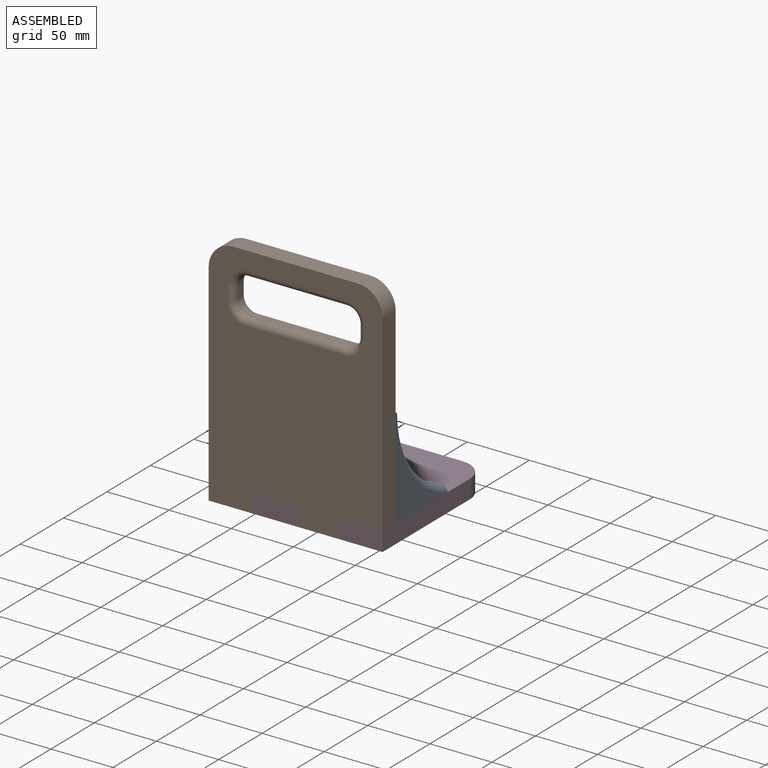
[diagram: assembled view]
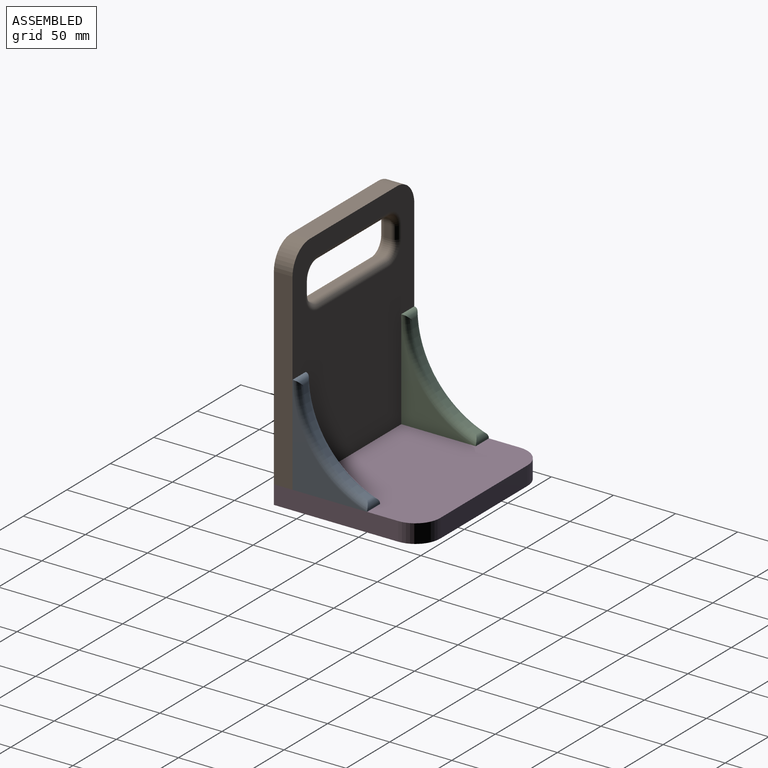
[diagram: assembled view, second angle]
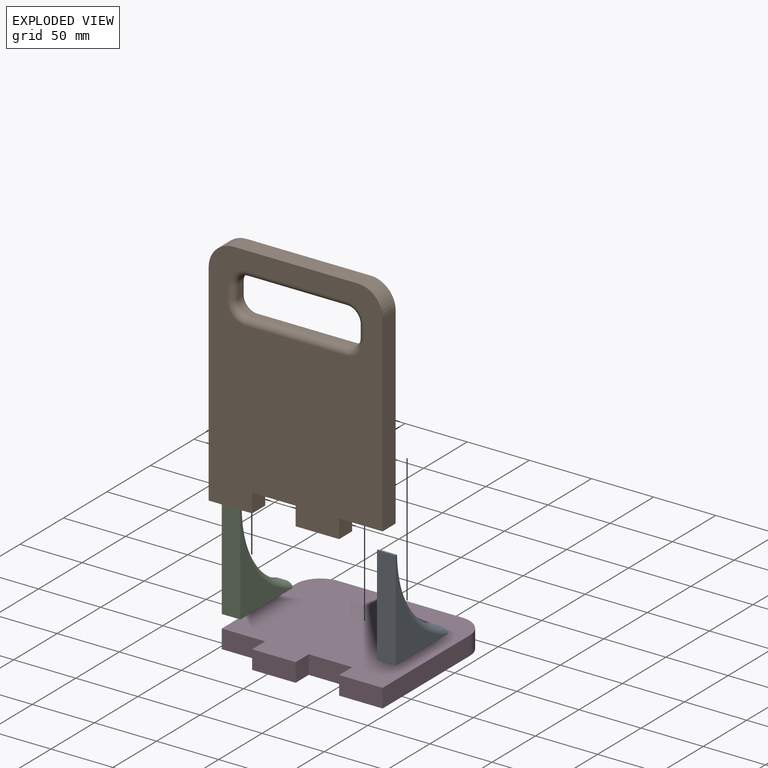
[diagram: exploded view]
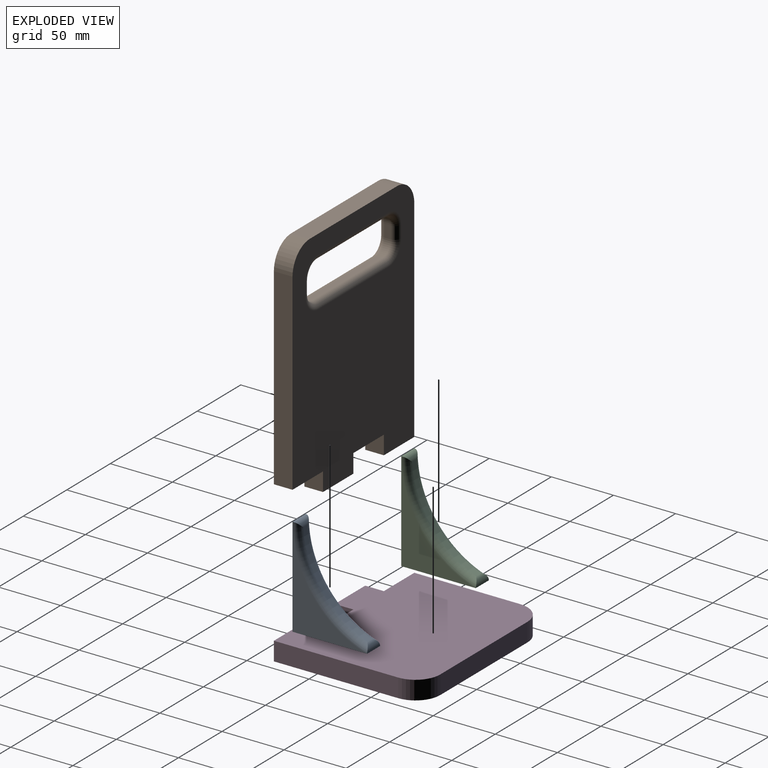
[diagram: exploded view, second angle]
ASSEMBLY  parts=4 mates=3
PART A: 11 faces, bbox 15x72.1x90.5 mm
  f0: plane 80x15mm, normal (0,-1,0), area 1200mm2, adj f1,f4,f5,f6
  f1: plane 60x15mm, normal (0,0,-1), area 900mm2, adj f0,f2,f5,f6,f8,f9
  f2: plane 14.99x1.42mm, normal (0,1,0), area 21mm2, adj f1,f8,f9,f10
  f3: cylinder r=78.64mm len=69.18mm, axis (-1,0,0), area 456.7mm2, adj f7,f8,f9,f10
  f4: plane 15x0.15mm, normal (0,0,1), area 2.2mm2, adj f0,f7,f8,f9
  f5: plane 80x59.24mm, normal (1,0,0), area 1256.4mm2, adj f0,f1,f8
  f6: plane 80x59.24mm, normal (-1,0,0), area 1256.4mm2, adj f0,f1,f9
  f7: cylinder r=5mm len=15mm, axis (-1,0,0), area 85.5mm2, adj f3,f4,f8,f9
  f8: torus R=83.64mm, axis (1,0,0), area 783.2mm2, adj f1,f2,f3,f4,f5,f7,f10
  f9: torus R=83.64mm, axis (1,0,0), area 783.2mm2, adj f1,f2,f3,f4,f6,f7,f10
  f10: cylinder r=5mm len=14.49mm, axis (-1,0,0), area 64.1mm2, adj f2,f3,f8,f9
PART B: 38 faces, bbox 140x15x190 mm
  f0: cylinder r=10mm len=10mm, axis (0,1,0), area 78.5mm2, adj f1,f19,f28,f36
  f1: plane 10x5mm, normal (-1,0,0), area 50mm2, adj f0,f2,f26,f34
  f2: cylinder r=10mm len=10mm, axis (0,1,0), area 78.5mm2, adj f1,f3,f24,f32
  f3: plane 80x5mm, normal (0,0,1), area 400mm2, adj f2,f4,f22,f30
  f4: cylinder r=10mm len=10mm, axis (0,1,0), area 78.5mm2, adj f3,f5,f23,f31
  f5: plane 10x5mm, normal (1,0,0), area 50mm2, adj f4,f6,f25,f33
  f6: cylinder r=10mm len=10mm, axis (0,1,0), area 78.5mm2, adj f5,f19,f27,f35
  f7: plane 35x15mm, normal (0,0,-1), area 525mm2, adj f8,f18,f20,f21
  f8: plane 15x15mm, normal (1,0,0), area 225mm2, adj f7,f9,f20,f21
  f9: plane 35x15mm, normal (0,0,-1), area 525mm2, adj f8,f10,f20,f21
  f10: plane 15x15mm, normal (-1,0,0), area 225mm2, adj f9,f11,f20,f21
  f11: plane 35x15mm, normal (0,0,-1), area 525mm2, adj f10,f12,f20,f21
  f12: plane 15x15mm, normal (1,0,0), area 225mm2, adj f11,f13,f20,f21
  f13: plane 35x15mm, normal (0,0,-1), area 525mm2, adj f12,f14,f20,f21
  f14: plane 155x15mm, normal (1,0,0), area 2325mm2, adj f13,f15,f20,f21
  f15: cylinder r=20mm len=20mm, axis (0,1,0), area 471.2mm2, adj f14,f16,f20,f21
  f16: plane 100x15mm, normal (0,0,1), area 1500mm2, adj f15,f17,f20,f21
  f17: cylinder r=20mm len=20mm, axis (0,1,0), area 471.2mm2, adj f16,f18,f20,f21
  f18: plane 170x15mm, normal (-1,0,0), area 2550mm2, adj f7,f17,f20,f21
  f19: plane 80x5mm, normal (0,0,-1), area 400mm2, adj f0,f6,f29,f37
  f20: plane 190x140mm, normal (0,-1,0), area 21171.5mm2, adj f7,f8,f9,f10,f11,f12,f13,f14
  f21: plane 190x140mm, normal (0,1,0), area 21171.5mm2, adj f7,f8,f9,f10,f11,f12,f13,f14
  f22: cylinder r=5mm len=80mm, axis (-1,0,0), area 628.3mm2, adj f3,f21,f23,f24
  f23: torus R=15mm, axis (0,-1,0), area 145.8mm2, adj f4,f21,f22,f25
  f24: torus R=15mm, axis (0,-1,0), area 145.8mm2, adj f2,f21,f22,f26
  f25: cylinder r=5mm len=10mm, axis (0,0,1), area 78.5mm2, adj f5,f21,f23,f27
  f26: cylinder r=5mm len=10mm, axis (0,0,-1), area 78.5mm2, adj f1,f21,f24,f28
  f27: torus R=15mm, axis (0,-1,0), area 145.8mm2, adj f6,f21,f25,f29
  f28: torus R=15mm, axis (0,-1,0), area 145.8mm2, adj f0,f21,f26,f29
  f29: cylinder r=5mm len=80mm, axis (1,0,0), area 628.3mm2, adj f19,f21,f27,f28
  f30: cylinder r=5mm len=80mm, axis (1,0,0), area 628.3mm2, adj f3,f20,f31,f32
  f31: torus R=15mm, axis (0,-1,0), area 145.8mm2, adj f4,f20,f30,f33
  f32: torus R=15mm, axis (0,-1,0), area 145.8mm2, adj f2,f20,f30,f34
  f33: cylinder r=5mm len=10mm, axis (0,0,-1), area 78.5mm2, adj f5,f20,f31,f35
  f34: cylinder r=5mm len=10mm, axis (0,0,1), area 78.5mm2, adj f1,f20,f32,f36
  f35: torus R=15mm, axis (0,-1,0), area 145.8mm2, adj f6,f20,f33,f37
  f36: torus R=15mm, axis (0,-1,0), area 145.8mm2, adj f0,f20,f34,f37
  f37: cylinder r=5mm len=80mm, axis (-1,0,0), area 628.3mm2, adj f19,f20,f35,f36
PART C: same geometry as A
PART D: 14 faces, bbox 140x120x15 mm
  f0: plane 85x15mm, normal (-1,0,0), area 1275mm2, adj f1,f11,f12,f13
  f1: plane 35x15mm, normal (0,-1,0), area 525mm2, adj f0,f2,f12,f13
  f2: plane 15x15mm, normal (-1,0,0), area 225mm2, adj f1,f3,f12,f13
  f3: plane 35x15mm, normal (0,-1,0), area 525mm2, adj f2,f4,f12,f13
  f4: plane 15x15mm, normal (1,0,0), area 225mm2, adj f3,f5,f12,f13
  f5: plane 35x15mm, normal (0,-1,0), area 525mm2, adj f4,f6,f12,f13
  f6: plane 15x15mm, normal (-1,0,0), area 225mm2, adj f5,f7,f12,f13
  f7: plane 35x15mm, normal (0,-1,0), area 525mm2, adj f6,f8,f12,f13
  f8: plane 100x15mm, normal (1,0,0), area 1500mm2, adj f7,f9,f12,f13
  f9: cylinder r=20mm len=20mm, axis (0,0,-1), area 471.2mm2, adj f8,f10,f12,f13
  f10: plane 100x15mm, normal (0,1,0), area 1500mm2, adj f9,f11,f12,f13
  f11: cylinder r=20mm len=20mm, axis (0,0,-1), area 471.2mm2, adj f0,f10,f12,f13
  f12: plane 140x120mm, normal (0,0,1), area 15578.3mm2, adj f0,f1,f2,f3,f4,f5,f6,f7
  f13: plane 140x120mm, normal (0,0,-1), area 15578.3mm2, adj f0,f1,f2,f3,f4,f5,f6,f7
PLACE A t=(32.8,35.26,-19.14)mm
PLACE B t=(-92.2,35.26,-34.14)mm
PLACE C t=(-92.2,35.26,-19.14)mm
PLACE D t=(-92.2,20.26,-34.14)mm
MATE fastened A.f1 <-> B.f13  axis (0,0,1) through (47.8,35.26,-19.14)mm
MATE fastened C.f1 <-> D.f12  axis (0,0,1) through (-92.2,35.26,-19.14)mm
MATE fastened D.f12 <-> B.f13  axis (0,0,1) through (12.8,20.26,-19.14)mm
